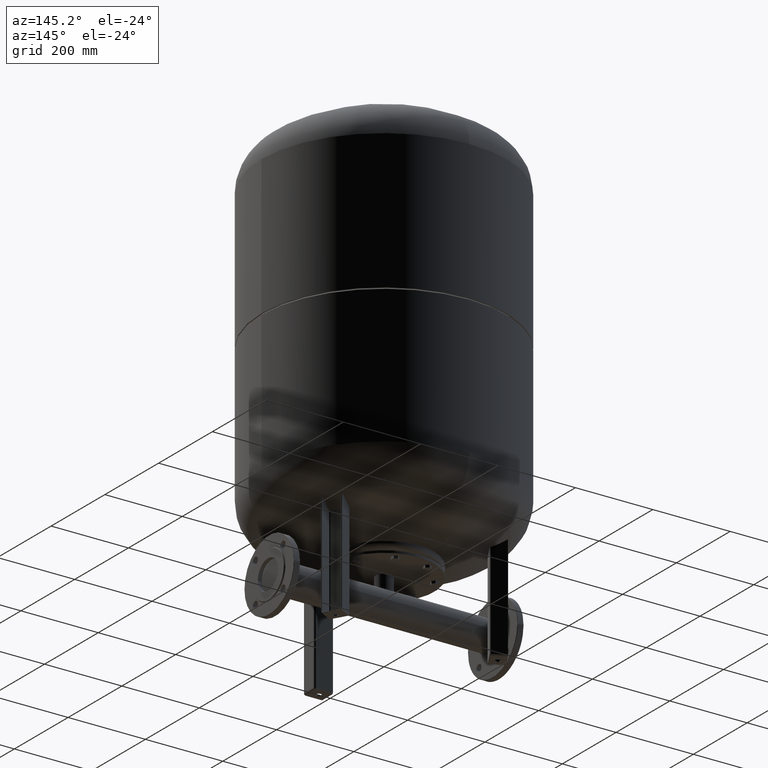
[diagram: clean part render]
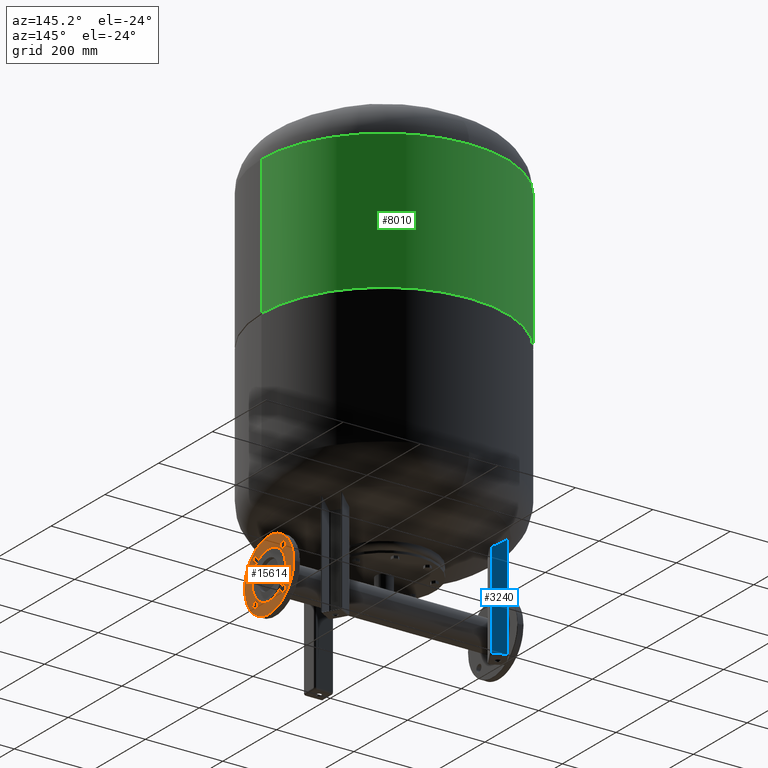
[diagram: same view with three faces highlighted in distinct colors, each labeled with its STEP entity id]
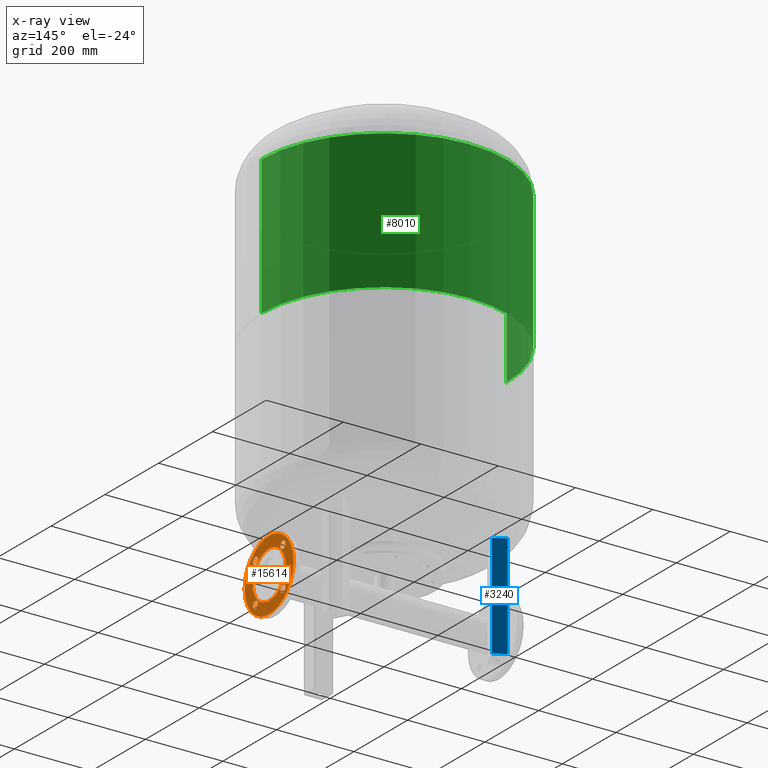
[diagram: x-ray of the same camera — body ghosted, the three highlighted faces saturated]
A machine part, auxiliary view with three faces highlighted in distinct colors.
The next image is the same camera in x-ray (body ghosted, the three faces saturated) — at least one of them is partly hidden behind the body in this view.
Their STEP definitions:

[orange] entity #15614 — the highlighted planar face has unit normal (1, 0, 0).
#15114=CARTESIAN_POINT('',(297.0,-60.732050807568875,115.0));
#15115=VERTEX_POINT('',#15114);
#15124=CARTESIAN_POINT('',(297.0,60.732050807568882,114.999999999999990));
#15125=VERTEX_POINT('',#15124);
#15126=CARTESIAN_POINT('',(297.0,-5.510729E-016,115.0));
#15127=DIRECTION('',(-1.0,0.0,0.0));
#15128=DIRECTION('',(0.0,-1.0,0.0));
#15129=AXIS2_PLACEMENT_3D('',#15126,#15127,#15128);
#15130=CIRCLE('',#15129,60.732050807568875);
#15131=EDGE_CURVE('',#15125,#15115,#15130,.T.);
#15158=CARTESIAN_POINT('',(297.0,-60.765241636024662,166.265241636024710));
#15159=VERTEX_POINT('',#15158);
#15175=CARTESIAN_POINT('',(297.0,-41.765241636024662,166.265241636024800));
#15176=VERTEX_POINT('',#15175);
#15183=CARTESIAN_POINT('',(297.0,-51.265241636024662,166.265241636024710));
#15184=DIRECTION('',(-1.0,0.0,0.0));
#15185=DIRECTION('',(0.0,-1.0,0.0));
#15186=AXIS2_PLACEMENT_3D('',#15183,#15184,#15185);
#15187=CIRCLE('',#15186,9.500000000000000);
#15188=EDGE_CURVE('',#15159,#15176,#15187,.T.);
#15200=CARTESIAN_POINT('',(297.0,-60.765241636024754,63.734758363975367));
#15201=VERTEX_POINT('',#15200);
#15217=CARTESIAN_POINT('',(297.0,-41.765241636024754,63.734758363975430));
#15218=VERTEX_POINT('',#15217);
#15225=CARTESIAN_POINT('',(297.0,-51.265241636024754,63.734758363975367));
#15226=DIRECTION('',(-1.0,0.0,0.0));
#15227=DIRECTION('',(0.0,-1.0,0.0));
#15228=AXIS2_PLACEMENT_3D('',#15225,#15226,#15227);
#15229=CIRCLE('',#15228,9.500000000000000);
#15230=EDGE_CURVE('',#15201,#15218,#15229,.T.);
#15242=CARTESIAN_POINT('',(297.0,41.765241636024690,63.734758363975303));
#15243=VERTEX_POINT('',#15242);
#15259=CARTESIAN_POINT('',(297.0,60.765241636024690,63.734758363975367));
#15260=VERTEX_POINT('',#15259);
#15267=CARTESIAN_POINT('',(297.0,51.265241636024690,63.734758363975303));
#15268=DIRECTION('',(-1.0,0.0,0.0));
#15269=DIRECTION('',(0.0,-1.0,0.0));
#15270=AXIS2_PLACEMENT_3D('',#15267,#15268,#15269);
#15271=CIRCLE('',#15270,9.500000000000000);
#15272=EDGE_CURVE('',#15243,#15260,#15271,.T.);
#15284=CARTESIAN_POINT('',(297.0,41.765241636024712,166.265241636024680));
#15285=VERTEX_POINT('',#15284);
#15301=CARTESIAN_POINT('',(297.0,60.765241636024712,166.265241636024740));
#15302=VERTEX_POINT('',#15301);
#15309=CARTESIAN_POINT('',(297.0,51.265241636024712,166.265241636024680));
#15310=DIRECTION('',(-1.0,0.0,0.0));
#15311=DIRECTION('',(0.0,-1.0,0.0));
#15312=AXIS2_PLACEMENT_3D('',#15309,#15310,#15311);
#15313=CIRCLE('',#15312,9.500000000000000);
#15314=EDGE_CURVE('',#15285,#15302,#15313,.T.);
#15326=CARTESIAN_POINT('',(297.0,91.500000000000000,115.0));
#15327=VERTEX_POINT('',#15326);
#15344=CARTESIAN_POINT('',(297.0,-91.500000000000000,115.0));
#15345=VERTEX_POINT('',#15344);
#15353=CARTESIAN_POINT('',(297.0,-5.510729E-016,115.0));
#15354=DIRECTION('',(-1.0,0.0,0.0));
#15355=DIRECTION('',(0.0,1.0,0.0));
#15356=AXIS2_PLACEMENT_3D('',#15353,#15354,#15355);
#15357=CIRCLE('',#15356,91.500000000000000);
#15358=EDGE_CURVE('',#15345,#15327,#15357,.T.);
#15543=CARTESIAN_POINT('',(297.0,-5.510729E-016,115.0));
#15544=DIRECTION('',(-1.0,0.0,0.0));
#15545=DIRECTION('',(0.0,1.0,0.0));
#15546=AXIS2_PLACEMENT_3D('',#15543,#15544,#15545);
#15547=CIRCLE('',#15546,91.500000000000000);
#15548=EDGE_CURVE('',#15327,#15345,#15547,.T.);
#15555=CARTESIAN_POINT('',(297.0,-92.500000000000000,115.0));
#15556=DIRECTION('',(1.0,0.0,0.0));
#15557=DIRECTION('',(0.0,-1.0,0.0));
#15558=AXIS2_PLACEMENT_3D('',#15555,#15556,#15557);
#15559=PLANE('',#15558);
#15560=ORIENTED_EDGE('',*,*,#15358,.F.);
#15561=ORIENTED_EDGE('',*,*,#15548,.F.);
#15562=EDGE_LOOP('',(#15560,#15561));
#15563=FACE_OUTER_BOUND('',#15562,.T.);
#15564=CARTESIAN_POINT('',(297.0,-5.510729E-016,115.0));
#15565=DIRECTION('',(-1.0,0.0,0.0));
#15566=DIRECTION('',(0.0,-1.0,0.0));
#15567=AXIS2_PLACEMENT_3D('',#15564,#15565,#15566);
#15568=CIRCLE('',#15567,60.732050807568875);
#15569=EDGE_CURVE('',#15115,#15125,#15568,.T.);
#15570=ORIENTED_EDGE('',*,*,#15569,.T.);
#15571=ORIENTED_EDGE('',*,*,#15131,.T.);
#15572=EDGE_LOOP('',(#15570,#15571));
#15573=FACE_BOUND('',#15572,.T.);
#15574=CARTESIAN_POINT('',(297.0,-51.265241636024662,166.265241636024710));
#15575=DIRECTION('',(-1.0,0.0,0.0));
#15576=DIRECTION('',(0.0,-1.0,0.0));
#15577=AXIS2_PLACEMENT_3D('',#15574,#15575,#15576);
#15578=CIRCLE('',#15577,9.500000000000000);
#15579=EDGE_CURVE('',#15176,#15159,#15578,.T.);
#15580=ORIENTED_EDGE('',*,*,#15579,.T.);
#15581=ORIENTED_EDGE('',*,*,#15188,.T.);
#15582=EDGE_LOOP('',(#15580,#15581));
#15583=FACE_BOUND('',#15582,.T.);
#15584=CARTESIAN_POINT('',(297.0,-51.265241636024754,63.734758363975367));
#15585=DIRECTION('',(-1.0,0.0,0.0));
#15586=DIRECTION('',(0.0,-1.0,0.0));
#15587=AXIS2_PLACEMENT_3D('',#15584,#15585,#15586);
#15588=CIRCLE('',#15587,9.500000000000000);
#15589=EDGE_CURVE('',#15218,#15201,#15588,.T.);
#15590=ORIENTED_EDGE('',*,*,#15589,.T.);
#15591=ORIENTED_EDGE('',*,*,#15230,.T.);
#15592=EDGE_LOOP('',(#15590,#15591));
#15593=FACE_BOUND('',#15592,.T.);
#15594=CARTESIAN_POINT('',(297.0,51.265241636024690,63.734758363975303));
#15595=DIRECTION('',(-1.0,0.0,0.0));
#15596=DIRECTION('',(0.0,-1.0,0.0));
#15597=AXIS2_PLACEMENT_3D('',#15594,#15595,#15596);
#15598=CIRCLE('',#15597,9.500000000000000);
#15599=EDGE_CURVE('',#15260,#15243,#15598,.T.);
#15600=ORIENTED_EDGE('',*,*,#15599,.T.);
#15601=ORIENTED_EDGE('',*,*,#15272,.T.);
#15602=EDGE_LOOP('',(#15600,#15601));
#15603=FACE_BOUND('',#15602,.T.);
#15604=CARTESIAN_POINT('',(297.0,51.265241636024712,166.265241636024680));
#15605=DIRECTION('',(-1.0,0.0,0.0));
#15606=DIRECTION('',(0.0,-1.0,0.0));
#15607=AXIS2_PLACEMENT_3D('',#15604,#15605,#15606);
#15608=CIRCLE('',#15607,9.500000000000000);
#15609=EDGE_CURVE('',#15302,#15285,#15608,.T.);
#15610=ORIENTED_EDGE('',*,*,#15609,.T.);
#15611=ORIENTED_EDGE('',*,*,#15314,.T.);
#15612=EDGE_LOOP('',(#15610,#15611));
#15613=FACE_BOUND('',#15612,.T.);
#15614=ADVANCED_FACE('',(#15563,#15573,#15583,#15593,#15603,#15613),#15559,.T.);

[blue] entity #3240 — the highlighted planar face has unit normal (0.5, 0.866, -0).
#2412=CARTESIAN_POINT('',(-184.520779360959750,135.400635094611120,274.0));
#2413=VERTEX_POINT('',#2412);
#2421=CARTESIAN_POINT('',(-213.965643089630670,152.400635094611090,274.0));
#2422=VERTEX_POINT('',#2421);
#2423=CARTESIAN_POINT('',(-213.965643089630670,152.400635094611090,274.0));
#2424=DIRECTION('',(0.866025403784439,-0.499999999999999,0.0));
#2425=VECTOR('',#2424,33.999999999999993);
#2426=LINE('',#2423,#2425);
#2427=EDGE_CURVE('',#2422,#2413,#2426,.T.);
#2732=CARTESIAN_POINT('',(-213.965643089630670,152.400635094611090,4.999999999999996));
#2733=VERTEX_POINT('',#2732);
#2734=CARTESIAN_POINT('',(-213.965643089630670,152.400635094611090,4.999999999999996));
#2735=DIRECTION('',(0.0,0.0,1.0));
#2736=VECTOR('',#2735,269.0);
#2737=LINE('',#2734,#2736);
#2738=EDGE_CURVE('',#2733,#2422,#2737,.T.);
#3115=CARTESIAN_POINT('',(-184.520779360959750,135.400635094611090,4.999999999999996));
#3116=VERTEX_POINT('',#3115);
#3117=CARTESIAN_POINT('',(-213.965643089630670,152.400635094611090,4.999999999999996));
#3118=DIRECTION('',(0.866025403784439,-0.500000000000000,0.0));
#3119=VECTOR('',#3118,34.000000000000007);
#3120=LINE('',#3117,#3119);
#3121=EDGE_CURVE('',#2733,#3116,#3120,.T.);
#3218=CARTESIAN_POINT('',(-184.520779360959750,135.400635094611090,4.999999999999996));
#3219=DIRECTION('',(0.0,0.0,1.0));
#3220=VECTOR('',#3219,269.0);
#3221=LINE('',#3218,#3220);
#3222=EDGE_CURVE('',#3116,#2413,#3221,.T.);
#3229=CARTESIAN_POINT('',(-214.831668493415120,152.900635094611090,-4.592425E-015));
#3230=DIRECTION('',(0.500000000000000,0.866025403784439,-1.836970E-016));
#3231=DIRECTION('',(-0.866025403784439,0.500000000000000,2.039447E-032));
#3232=AXIS2_PLACEMENT_3D('',#3229,#3230,#3231);
#3233=PLANE('',#3232);
#3234=ORIENTED_EDGE('',*,*,#2738,.T.);
#3235=ORIENTED_EDGE('',*,*,#2427,.T.);
#3236=ORIENTED_EDGE('',*,*,#3222,.F.);
#3237=ORIENTED_EDGE('',*,*,#3121,.F.);
#3238=EDGE_LOOP('',(#3234,#3235,#3236,#3237));
#3239=FACE_OUTER_BOUND('',#3238,.T.);
#3240=ADVANCED_FACE('',(#3239),#3233,.T.);

[green] entity #8010 — the highlighted cylindrical surface (partial cylindrical patch) has radius 317 mm, axis along (0, 0, 1).
#7810=CARTESIAN_POINT('',(317.0,0.0,1076.0));
#7811=VERTEX_POINT('',#7810);
#7812=CARTESIAN_POINT('',(316.999999999999940,0.0,718.0));
#7813=VERTEX_POINT('',#7812);
#7814=CARTESIAN_POINT('',(317.0,0.0,1076.0));
#7815=DIRECTION('',(0.0,0.0,-1.0));
#7816=VECTOR('',#7815,358.0);
#7817=LINE('',#7814,#7816);
#7818=EDGE_CURVE('',#7811,#7813,#7817,.T.);
#7820=CARTESIAN_POINT('',(-317.0,-3.882002E-014,1076.0));
#7821=VERTEX_POINT('',#7820);
#7829=CARTESIAN_POINT('',(-317.0,-3.882002E-014,718.0));
#7830=VERTEX_POINT('',#7829);
#7831=CARTESIAN_POINT('',(-317.0,-3.882002E-014,1076.0));
#7832=DIRECTION('',(0.0,0.0,-1.0));
#7833=VECTOR('',#7832,358.0);
#7834=LINE('',#7831,#7833);
#7835=EDGE_CURVE('',#7821,#7830,#7834,.T.);
#7978=CARTESIAN_POINT('',(0.0,0.0,718.0));
#7979=DIRECTION('',(0.0,0.0,1.0));
#7980=DIRECTION('',(1.0,0.0,0.0));
#7981=AXIS2_PLACEMENT_3D('',#7978,#7979,#7980);
#7982=CIRCLE('',#7981,316.999999999999940);
#7983=EDGE_CURVE('',#7813,#7830,#7982,.T.);
#7993=CARTESIAN_POINT('',(8.343982E-015,0.0,897.0));
#7994=DIRECTION('',(4.661443E-017,0.0,1.0));
#7995=DIRECTION('',(1.0,0.0,0.0));
#7996=AXIS2_PLACEMENT_3D('',#7993,#7994,#7995);
#7997=CYLINDRICAL_SURFACE('',#7996,317.0);
#7998=ORIENTED_EDGE('',*,*,#7818,.T.);
#7999=ORIENTED_EDGE('',*,*,#7983,.T.);
#8000=ORIENTED_EDGE('',*,*,#7835,.F.);
#8001=CARTESIAN_POINT('',(1.668796E-014,0.0,1076.0));
#8002=DIRECTION('',(0.0,0.0,1.0));
#8003=DIRECTION('',(1.0,0.0,0.0));
#8004=AXIS2_PLACEMENT_3D('',#8001,#8002,#8003);
#8005=CIRCLE('',#8004,317.0);
#8006=EDGE_CURVE('',#7811,#7821,#8005,.T.);
#8007=ORIENTED_EDGE('',*,*,#8006,.F.);
#8008=EDGE_LOOP('',(#7998,#7999,#8000,#8007));
#8009=FACE_OUTER_BOUND('',#8008,.T.);
#8010=ADVANCED_FACE('',(#8009),#7997,.T.);